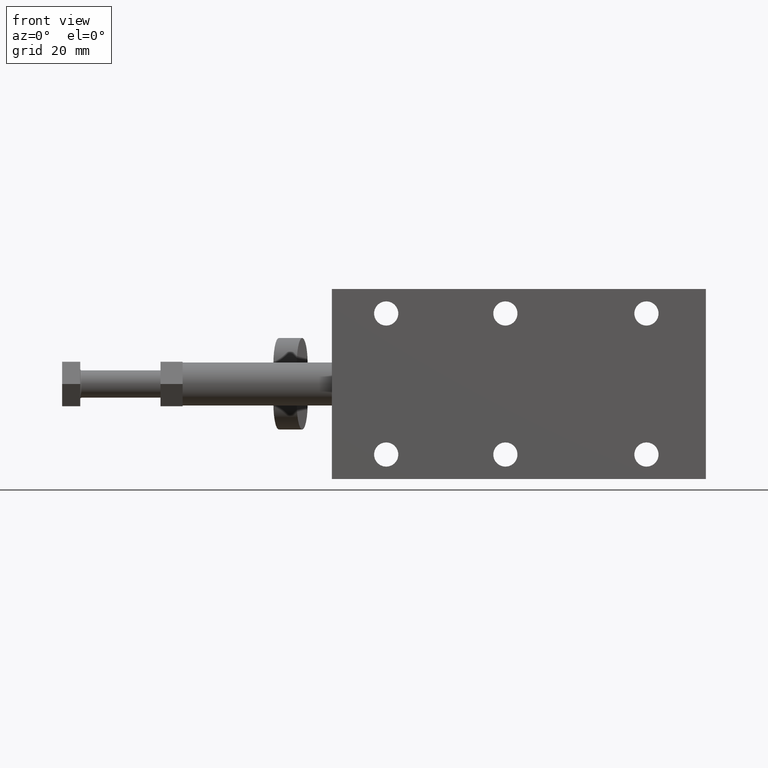
[diagram: clean part render]
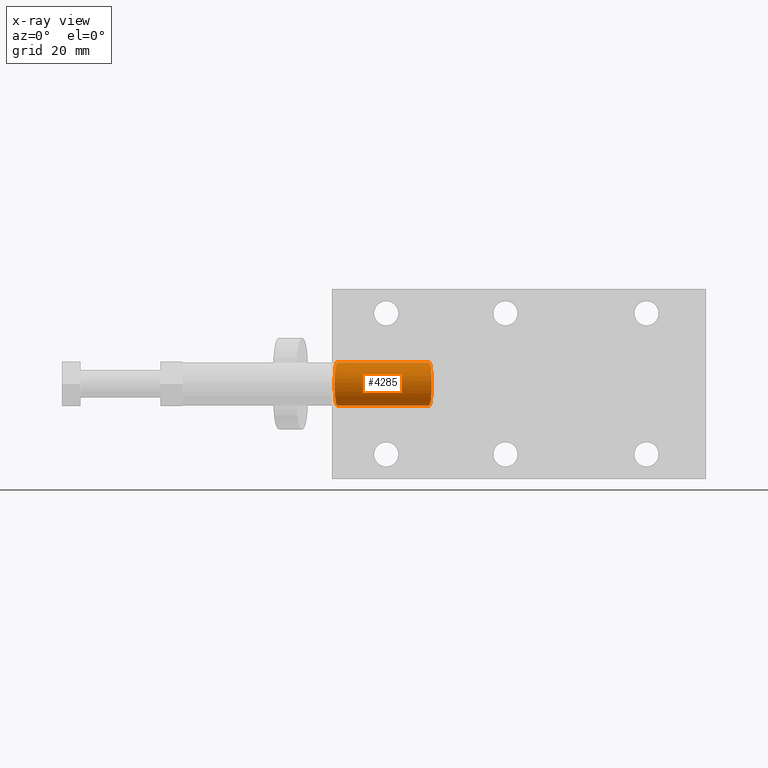
[diagram: x-ray — body ghosted, one internal face saturated and labeled with its STEP entity id]
A machine part, front view, then the same camera in x-ray: the body is ghosted and one INTERNAL B-rep face — a face not visible from any outside direction — is saturated and labeled: STEP entity #4285.
In plain terms, the highlighted cylindrical surface (edge-blend (fillet) strip) has radius 6.3 mm, axis along (-1, 0, 0).
Its self-contained STEP definition (entity closure, byte-faithful):
#407 =( BOUNDED_CURVE ( )  B_SPLINE_CURVE ( 3, ( #2934, #4300, #8217, #4064 ),
 .UNSPECIFIED., .F., .T. ) 
 B_SPLINE_CURVE_WITH_KNOTS ( ( 4, 4 ),
 ( 4.712388980384687900, 7.853981633974481000 ),
 .UNSPECIFIED. ) 
 CURVE ( )  GEOMETRIC_REPRESENTATION_ITEM ( )  RATIONAL_B_SPLINE_CURVE ( ( 1.000000000000000000, 0.3333333333333333700, 0.3333333333333333700, 1.000000000000000000 ) ) 
 REPRESENTATION_ITEM ( '' )  );
#461 = VERTEX_POINT ( 'NONE', #7879 ) ;
#1506 = VERTEX_POINT ( 'NONE', #5342 ) ;
#1519 = VECTOR ( 'NONE', #4410, 1000.000000000000000 ) ;
#1678 =( BOUNDED_CURVE ( )  B_SPLINE_CURVE ( 3, ( #1814, #1777, #7404, #3194 ),
 .UNSPECIFIED., .F., .T. ) 
 B_SPLINE_CURVE_WITH_KNOTS ( ( 4, 4 ),
 ( 1.570796326794895000, 4.712388980384687900 ),
 .UNSPECIFIED. ) 
 CURVE ( )  GEOMETRIC_REPRESENTATION_ITEM ( )  RATIONAL_B_SPLINE_CURVE ( ( 1.000000000000000000, 0.3333333333333333700, 0.3333333333333333700, 1.000000000000000000 ) ) 
 REPRESENTATION_ITEM ( '' )  );
#1751 = LINE ( 'NONE', #3697, #1519 ) ;
#1777 = CARTESIAN_POINT ( 'NONE',  ( -24.76214574898782000, 4.899999999999997700, 6.299999999999989200 ) ) ;
#1814 = CARTESIAN_POINT ( 'NONE',  ( -26.29251012145746100, 17.50000000000000000, 6.299999999999994500 ) ) ;
#2848 = EDGE_LOOP ( 'NONE', ( #8825, #5932, #6646, #7352 ) ) ;
#2934 = CARTESIAN_POINT ( 'NONE',  ( -53.20748987854249600, 17.50000000000000000, -6.299999999999999800 ) ) ;
#3013 = FACE_OUTER_BOUND ( 'NONE', #2848, .T. ) ;
#3052 = EDGE_CURVE ( 'NONE', #4148, #1506, #407, .T. ) ;
#3194 = CARTESIAN_POINT ( 'NONE',  ( -26.29251012145746100, 17.50000000000000000, -6.300000000000006900 ) ) ;
#3247 = VECTOR ( 'NONE', #6372, 1000.000000000000000 ) ;
#3697 = CARTESIAN_POINT ( 'NONE',  ( 54.75100000000000500, 17.50000000000000000, -6.300000000000027400 ) ) ;
#4057 = EDGE_CURVE ( 'NONE', #6415, #461, #1678, .T. ) ;
#4064 = CARTESIAN_POINT ( 'NONE',  ( -53.20748987854249600, 17.50000000000000000, 6.300000000000001600 ) ) ;
#4148 = VERTEX_POINT ( 'NONE', #6133 ) ;
#4285 = ADVANCED_FACE ( 'NONE', ( #3013 ), #4469, .F. ) ;
#4300 = CARTESIAN_POINT ( 'NONE',  ( -54.73785425101214500, 4.899999999999997700, -6.299999999999999800 ) ) ;
#4410 = DIRECTION ( 'NONE',  ( -1.000000000000000000, -0.0000000000000000000, 2.496005001405477600E-016 ) ) ;
#4469 = CYLINDRICAL_SURFACE ( 'NONE', #8878, 6.300000000000000700 ) ;
#4862 = DIRECTION ( 'NONE',  ( 0.0000000000000000000, 0.0000000000000000000, 1.000000000000000000 ) ) ;
#5342 = CARTESIAN_POINT ( 'NONE',  ( -53.20748987854249600, 17.50000000000000000, 6.300000000000001600 ) ) ;
#5672 = CARTESIAN_POINT ( 'NONE',  ( 54.75100000000000500, 17.50000000000000000, 6.299999999999975000 ) ) ;
#5932 = ORIENTED_EDGE ( 'NONE', *, *, #8069, .T. ) ;
#6133 = CARTESIAN_POINT ( 'NONE',  ( -53.20748987854249600, 17.50000000000000000, -6.299999999999999800 ) ) ;
#6284 = CARTESIAN_POINT ( 'NONE',  ( 54.75100000000000500, 17.50000000000000000, -2.644362346096780900E-014 ) ) ;
#6372 = DIRECTION ( 'NONE',  ( -1.000000000000000000, -0.0000000000000000000, 2.496005001405477600E-016 ) ) ;
#6415 = VERTEX_POINT ( 'NONE', #6787 ) ;
#6646 = ORIENTED_EDGE ( 'NONE', *, *, #3052, .T. ) ;
#6787 = CARTESIAN_POINT ( 'NONE',  ( -26.29251012145746100, 17.50000000000000000, 6.299999999999994500 ) ) ;
#7352 = ORIENTED_EDGE ( 'NONE', *, *, #8479, .F. ) ;
#7404 = CARTESIAN_POINT ( 'NONE',  ( -24.76214574898782000, 4.900000000000001200, -6.300000000000010500 ) ) ;
#7879 = CARTESIAN_POINT ( 'NONE',  ( -26.29251012145746100, 17.50000000000000000, -6.300000000000006900 ) ) ;
#8069 = EDGE_CURVE ( 'NONE', #461, #4148, #1751, .T. ) ;
#8217 = CARTESIAN_POINT ( 'NONE',  ( -54.73785425101214500, 4.899999999999997700, 6.300000000000005200 ) ) ;
#8316 = DIRECTION ( 'NONE',  ( -1.000000000000000000, -0.0000000000000000000, 2.496005001405477600E-016 ) ) ;
#8479 = EDGE_CURVE ( 'NONE', #6415, #1506, #8598, .T. ) ;
#8598 = LINE ( 'NONE', #5672, #3247 ) ;
#8825 = ORIENTED_EDGE ( 'NONE', *, *, #4057, .T. ) ;
#8878 = AXIS2_PLACEMENT_3D ( 'NONE', #6284, #8316, #4862 ) ;